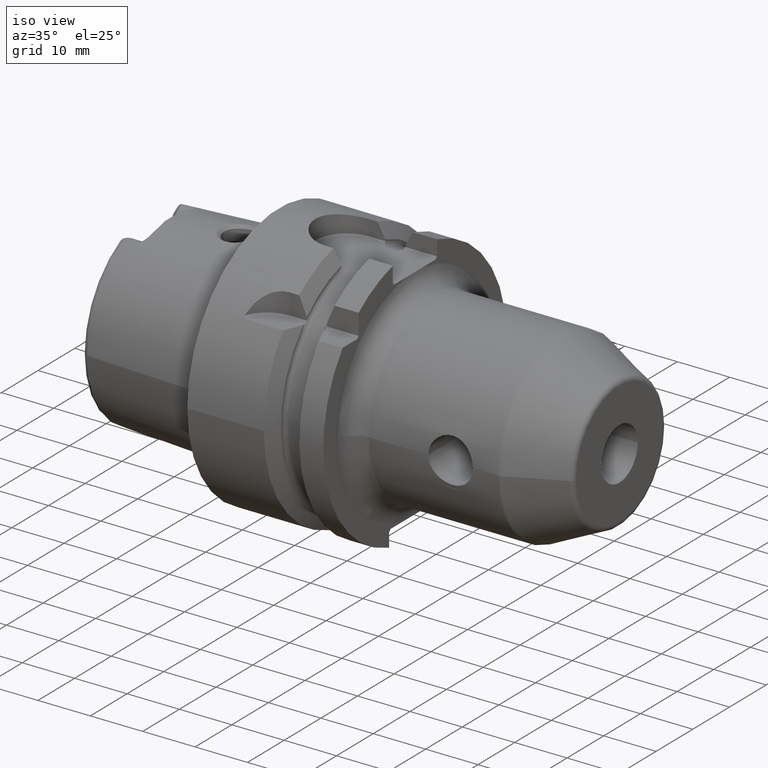
[diagram: clean part render]
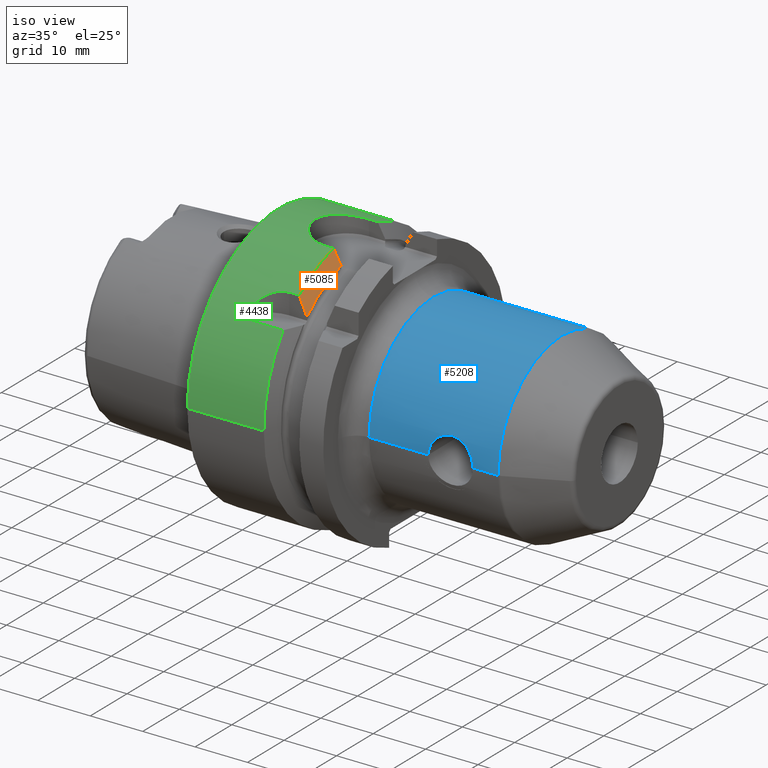
[diagram: same view with three faces highlighted in distinct colors, each labeled with its STEP entity id]
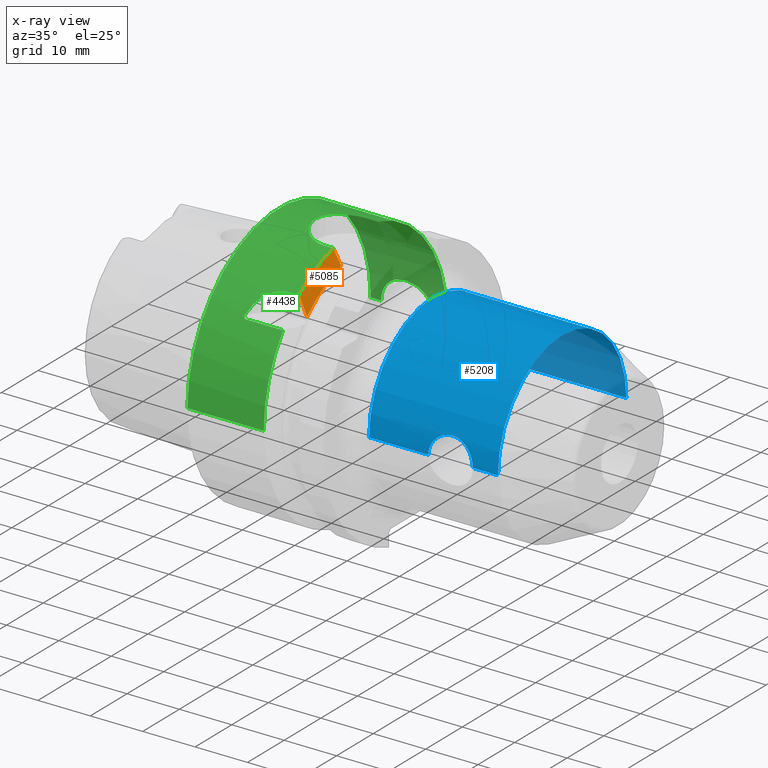
[diagram: x-ray of the same camera — body ghosted, the three highlighted faces saturated]
A machine part, iso view with three faces highlighted in distinct colors.
The next image is the same camera in x-ray (body ghosted, the three faces saturated) — at least one of them is partly hidden behind the body in this view.
Their STEP definitions:

[orange] entity #5085 — the highlighted conical surface has half-angle 60 deg.
#943=CARTESIAN_POINT('',(1.460806716851E1,0.E0,0.E0));
#944=DIRECTION('',(1.E0,0.E0,0.E0));
#945=DIRECTION('',(0.E0,-2.407E-1,9.705995621264E-1));
#946=AXIS2_PLACEMENT_3D('',#943,#944,#945);
#1172=CARTESIAN_POINT('',(1.460806716851E1,-6.0175E0,2.426498905316E1));
#1173=CARTESIAN_POINT('',(1.478033687197E1,-6.0175E0,2.395757094724E1));
#1174=CARTESIAN_POINT('',(1.511962153260E1,-6.0175E0,2.335143473849E1));
#1175=CARTESIAN_POINT('',(1.561259471048E1,-6.0175E0,2.246862618316E1));
#1176=CARTESIAN_POINT('',(1.593093705707E1,-6.0175E0,2.189706496369E1));
#1177=CARTESIAN_POINT('',(1.60875E1,-6.0175E0,2.161557810313E1));
#1214=CARTESIAN_POINT('',(1.60875E1,0.E0,0.E0));
#1215=DIRECTION('',(1.E0,0.E0,0.E0));
#1216=DIRECTION('',(0.E0,-2.681888512389E-1,9.633663581790E-1));
#1217=AXIS2_PLACEMENT_3D('',#1214,#1215,#1216);
#2010=CARTESIAN_POINT('',(1.460806716851E1,-1.535E1,1.973265060756E1));
#2011=CARTESIAN_POINT('',(1.479337707681E1,-1.535E1,1.932600709233E1));
#2012=CARTESIAN_POINT('',(1.514980156060E1,-1.535E1,1.853434646059E1));
#2013=CARTESIAN_POINT('',(1.564015286667E1,-1.535E1,1.741736156854E1));
#2014=CARTESIAN_POINT('',(1.594264224419E1,-1.535E1,1.670923586124E1));
#2015=CARTESIAN_POINT('',(1.60875E1,-1.535E1,1.636523825010E1));
#3109=CARTESIAN_POINT('',(1.60875E1,-6.0175E0,2.161557810313E1));
#3111=VERTEX_POINT('',#3109);
#3118=VERTEX_POINT('',#1172);
#3150=CARTESIAN_POINT('',(1.60875E1,-1.535E1,1.636523825010E1));
#3151=VERTEX_POINT('',#3150);
#3200=VERTEX_POINT('',#2010);
#5073=CARTESIAN_POINT('',(1.534778358426E1,0.E0,0.E0));
#5074=DIRECTION('',(-1.E0,0.E0,0.E0));
#5075=DIRECTION('',(0.E0,1.E0,0.E0));
#5076=AXIS2_PLACEMENT_3D('',#5073,#5074,#5075);
#5077=CONICAL_SURFACE('',#5076,2.371877358474E1,6.E1);
#5078=ORIENTED_EDGE('',*,*,#4648,.T.);
#5079=ORIENTED_EDGE('',*,*,#4687,.T.);
#5081=ORIENTED_EDGE('',*,*,#5080,.F.);
#5082=ORIENTED_EDGE('',*,*,#4417,.F.);
#5083=EDGE_LOOP('',(#5078,#5079,#5081,#5082));
#5084=FACE_OUTER_BOUND('',#5083,.F.);
#5085=ADVANCED_FACE('',(#5084),#5077,.T.);
#947=CIRCLE('',#946,2.5E1);
#1178=B_SPLINE_CURVE_WITH_KNOTS('',3,(#1172,#1173,#1174,#1175,#1176,#1177),
.UNSPECIFIED.,.F.,.F.,(4,1,1,4),(0.E0,3.333333333333E-1,6.666666666667E-1,1.E0),
.UNSPECIFIED.);
#1218=CIRCLE('',#1217,2.243754716948E1);
#2016=B_SPLINE_CURVE_WITH_KNOTS('',3,(#2010,#2011,#2012,#2013,#2014,#2015),
.UNSPECIFIED.,.F.,.F.,(4,1,1,4),(0.E0,3.333333333333E-1,6.666666666667E-1,1.E0),
.UNSPECIFIED.);
#4417=EDGE_CURVE('',#3118,#3200,#947,.T.);
#4648=EDGE_CURVE('',#3118,#3111,#1178,.T.);
#4687=EDGE_CURVE('',#3111,#3151,#1218,.T.);
#5080=EDGE_CURVE('',#3200,#3151,#2016,.T.);

[blue] entity #5208 — the highlighted cylindrical surface (partial cylindrical patch) has radius 17.5 mm, axis along (1, 0, 0).
#1704=CARTESIAN_POINT('',(4.075E1,-1.75E1,0.E0));
#1705=CARTESIAN_POINT('',(4.075E1,-1.75E1,2.130197039147E-1));
#1706=CARTESIAN_POINT('',(4.078161173627E1,-1.749228159655E1,
6.333805716531E-1));
#1707=CARTESIAN_POINT('',(4.092245200535E1,-1.745862258852E1,1.252781552854E0));
#1708=CARTESIAN_POINT('',(4.115179481535E1,-1.740611528043E1,1.840299977817E0));
#1709=CARTESIAN_POINT('',(4.146701037617E1,-1.733867884770E1,2.390358784023E0));
#1710=CARTESIAN_POINT('',(4.185948864356E1,-1.726240189724E1,2.886969726186E0));
#1711=CARTESIAN_POINT('',(4.232692702379E1,-1.718290588471E1,3.324674033533E0));
#1712=CARTESIAN_POINT('',(4.285433638867E1,-1.710816369491E1,3.687396218797E0));
#1713=CARTESIAN_POINT('',(4.343630437365E1,-1.704449781645E1,3.969161713291E0));
#1714=CARTESIAN_POINT('',(4.404328513304E1,-1.699926170109E1,4.157119174542E0));
#1715=CARTESIAN_POINT('',(4.467277888915E1,-1.697533126122E1,4.253056453453E0));
#1716=CARTESIAN_POINT('',(4.530199784139E1,-1.697485548976E1,4.254940041340E0));
#1717=CARTESIAN_POINT('',(4.593246679151E1,-1.699790173968E1,4.162634456686E0));
#1718=CARTESIAN_POINT('',(4.654019657417E1,-1.704235026038E1,3.978294549510E0));
#1719=CARTESIAN_POINT('',(4.712309613911E1,-1.710532842128E1,3.700413011273E0));
#1720=CARTESIAN_POINT('',(4.765357832203E1,-1.717983873078E1,3.340436728067E0));
#1721=CARTESIAN_POINT('',(4.812659820629E1,-1.725982925667E1,2.902390204199E0));
#1722=CARTESIAN_POINT('',(4.852415408302E1,-1.733685100034E1,2.403776234393E0));
#1723=CARTESIAN_POINT('',(4.884336895E1,-1.740503015295E1,1.850840187255E0));
#1724=CARTESIAN_POINT('',(4.907539738069E1,-1.745811341707E1,1.260383892617E0));
#1725=CARTESIAN_POINT('',(4.921798757235E1,-1.749218313134E1,
6.373559774327E-1));
#1726=CARTESIAN_POINT('',(4.925E1,-1.75E1,2.143892721542E-1));
#1727=CARTESIAN_POINT('',(4.925E1,-1.75E1,0.E0));
#1729=CARTESIAN_POINT('',(2.945E1,0.E0,0.E0));
#1730=DIRECTION('',(1.E0,0.E0,0.E0));
#1731=DIRECTION('',(0.E0,-1.024910657754E-5,9.999999999475E-1));
#1732=AXIS2_PLACEMENT_3D('',#1729,#1730,#1731);
#1734=CARTESIAN_POINT('',(2.945E1,0.E0,0.E0));
#1735=DIRECTION('',(1.E0,0.E0,0.E0));
#1736=DIRECTION('',(0.E0,1.E0,0.E0));
#1737=AXIS2_PLACEMENT_3D('',#1734,#1735,#1736);
#1739=CARTESIAN_POINT('',(5.405577073481E1,0.E0,0.E0));
#1740=DIRECTION('',(-1.E0,0.E0,0.E0));
#1741=DIRECTION('',(0.E0,-1.E0,0.E0));
#1742=AXIS2_PLACEMENT_3D('',#1739,#1740,#1741);
#1777=DIRECTION('',(-1.E0,0.E0,-1.017549422103E-13));
#1778=VECTOR('',#1777,4.805770734809E0);
#1779=CARTESIAN_POINT('',(5.405577073481E1,-1.75E1,4.871347205314E-13));
#1780=LINE('',#1779,#1778);
#1786=DIRECTION('',(-1.E0,0.E0,5.329089047643E-14));
#1787=VECTOR('',#1786,2.460577073481E1);
#1788=CARTESIAN_POINT('',(5.405577073481E1,1.75E1,-4.915586762056E-13));
#1789=LINE('',#1788,#1787);
#1790=DIRECTION('',(-1.E0,0.E0,-1.090872037542E-13));
#1791=VECTOR('',#1790,1.13E1);
#1792=CARTESIAN_POINT('',(4.075E1,-1.75E1,0.E0));
#1793=LINE('',#1792,#1791);
#3400=CARTESIAN_POINT('',(2.945E1,-1.793593651069E-4,1.749999999908E1));
#3401=CARTESIAN_POINT('',(2.945E1,-1.75E1,0.E0));
#3402=VERTEX_POINT('',#3400);
#3403=VERTEX_POINT('',#3401);
#3405=CARTESIAN_POINT('',(2.945E1,1.75E1,0.E0));
#3406=VERTEX_POINT('',#3405);
#3409=CARTESIAN_POINT('',(5.405577073481E1,1.75E1,0.E0));
#3410=CARTESIAN_POINT('',(5.405577073481E1,-1.75E1,0.E0));
#3411=VERTEX_POINT('',#3409);
#3412=VERTEX_POINT('',#3410);
#3433=VERTEX_POINT('',#1704);
#3434=VERTEX_POINT('',#1727);
#5189=CARTESIAN_POINT('',(2.39975E1,0.E0,0.E0));
#5190=DIRECTION('',(1.E0,0.E0,0.E0));
#5191=DIRECTION('',(0.E0,-1.E0,0.E0));
#5192=AXIS2_PLACEMENT_3D('',#5189,#5190,#5191);
#5193=CYLINDRICAL_SURFACE('',#5192,1.75E1);
#5195=ORIENTED_EDGE('',*,*,#5194,.F.);
#5197=ORIENTED_EDGE('',*,*,#5196,.T.);
#5198=ORIENTED_EDGE('',*,*,#5183,.F.);
#5199=ORIENTED_EDGE('',*,*,#4854,.F.);
#5201=ORIENTED_EDGE('',*,*,#5200,.F.);
#5203=ORIENTED_EDGE('',*,*,#5202,.F.);
#5205=ORIENTED_EDGE('',*,*,#5204,.T.);
#5206=EDGE_LOOP('',(#5195,#5197,#5198,#5199,#5201,#5203,#5205));
#5207=FACE_OUTER_BOUND('',#5206,.F.);
#5208=ADVANCED_FACE('',(#5207),#5193,.T.);
#1728=B_SPLINE_CURVE_WITH_KNOTS('',3,(#1704,#1705,#1706,#1707,#1708,#1709,#1710,
#1711,#1712,#1713,#1714,#1715,#1716,#1717,#1718,#1719,#1720,#1721,#1722,#1723,
#1724,#1725,#1726,#1727),.UNSPECIFIED.,.F.,.F.,(4,1,1,1,1,1,1,1,1,1,1,1,1,1,1,1,
1,1,1,1,1,4),(0.E0,4.761904761905E-2,9.523809523810E-2,1.428571428571E-1,
1.904761904762E-1,2.380952380952E-1,2.857142857143E-1,3.333333333333E-1,
3.809523809524E-1,4.285714285714E-1,4.761904761905E-1,5.238095238095E-1,
5.714285714286E-1,6.190476190476E-1,6.666666666667E-1,7.142857142857E-1,
7.619047619048E-1,8.095238095238E-1,8.571428571429E-1,9.047619047619E-1,
9.523809523810E-1,1.E0),.UNSPECIFIED.);
#1733=CIRCLE('',#1732,1.75E1);
#1738=CIRCLE('',#1737,1.75E1);
#1743=CIRCLE('',#1742,1.75E1);
#4854=EDGE_CURVE('',#3406,#3402,#1738,.T.);
#5183=EDGE_CURVE('',#3402,#3403,#1733,.T.);
#5194=EDGE_CURVE('',#3433,#3434,#1728,.T.);
#5196=EDGE_CURVE('',#3433,#3403,#1793,.T.);
#5200=EDGE_CURVE('',#3411,#3406,#1789,.T.);
#5202=EDGE_CURVE('',#3412,#3411,#1743,.T.);
#5204=EDGE_CURVE('',#3412,#3434,#1780,.T.);

[green] entity #4438 — the highlighted cylindrical surface (partial cylindrical patch) has radius 25 mm, axis along (1, 0, 0).
#867=CARTESIAN_POINT('',(0.E0,0.E0,0.E0));
#868=DIRECTION('',(1.E0,0.E0,0.E0));
#869=DIRECTION('',(0.E0,1.E0,0.E0));
#870=AXIS2_PLACEMENT_3D('',#867,#868,#869);
#887=CARTESIAN_POINT('',(1.2E1,2.5E1,1.526170039412E-14));
#888=CARTESIAN_POINT('',(1.2E1,2.5E1,1.396361669566E-1));
#889=CARTESIAN_POINT('',(1.198839559876E1,2.499767503671E1,4.188551199645E-1));
#890=CARTESIAN_POINT('',(1.193487591412E1,2.498702525719E1,8.411355470880E-1));
#891=CARTESIAN_POINT('',(1.184588884629E1,2.496956318530E1,1.255556682962E0));
#892=CARTESIAN_POINT('',(1.172437073918E1,2.494621805665E1,1.654326844388E0));
#893=CARTESIAN_POINT('',(1.157233803758E1,2.491780457859E1,2.037765396024E0));
#894=CARTESIAN_POINT('',(1.137826090774E1,2.488280033899E1,2.428957637124E0));
#895=CARTESIAN_POINT('',(1.112593169286E1,2.483941608179E1,2.839794746863E0));
#896=CARTESIAN_POINT('',(1.078966073596E1,2.478533925893E1,3.279662427458E0));
#897=CARTESIAN_POINT('',(1.034920049245E1,2.472123687765E1,3.731964970310E0));
#898=CARTESIAN_POINT('',(9.810568187861E0,2.465328264736E1,4.155812761009E0));
#899=CARTESIAN_POINT('',(9.171139758796E0,2.458785937757E1,4.524792131194E0));
#900=CARTESIAN_POINT('',(8.466271578711E0,2.453509771841E1,4.800556799822E0));
#901=CARTESIAN_POINT('',(7.720798631611E0,2.450179247679E1,4.966438431029E0));
#902=CARTESIAN_POINT('',(7.239977653175E0,2.449489742783E1,5.E0));
#903=CARTESIAN_POINT('',(7.E0,2.449489742783E1,5.E0));
#905=CARTESIAN_POINT('',(1.460806716851E1,0.E0,0.E0));
#906=DIRECTION('',(1.E0,0.E0,0.E0));
#907=DIRECTION('',(0.E0,1.E0,0.E0));
#908=AXIS2_PLACEMENT_3D('',#905,#906,#907);
#910=DIRECTION('',(1.E0,0.E0,0.E0));
#911=VECTOR('',#910,1.640567168511E0);
#912=CARTESIAN_POINT('',(1.29675E1,6.0175E0,2.426498905316E1));
#913=LINE('',#912,#911);
#914=CARTESIAN_POINT('',(1.29675E1,-6.0175E0,2.426498905316E1));
#915=CARTESIAN_POINT('',(1.267001977106E1,-6.0175E0,2.426498905316E1));
#916=CARTESIAN_POINT('',(1.208014574037E1,-5.974264320289E0,2.427577944586E1));
#917=CARTESIAN_POINT('',(1.119398879761E1,-5.773912792451E0,2.432458918315E1));
#918=CARTESIAN_POINT('',(1.035629865204E1,-5.446281307968E0,2.440062930721E1));
#919=CARTESIAN_POINT('',(9.570549924165E0,-4.994525095911E0,2.449784203663E1));
#920=CARTESIAN_POINT('',(8.859335655751E0,-4.428424444987E0,2.460735616990E1));
#921=CARTESIAN_POINT('',(8.237705259596E0,-3.756976706063E0,2.471958631858E1));
#922=CARTESIAN_POINT('',(7.729434557517E0,-3.007811120107E0,2.482263381281E1));
#923=CARTESIAN_POINT('',(7.337924838101E0,-2.188228602670E0,2.490880688784E1));
#924=CARTESIAN_POINT('',(7.076723724624E0,-1.332816222257E0,2.496957642541E1));
#925=CARTESIAN_POINT('',(6.944313494671E0,-4.437817595373E-1,2.500135908732E1));
#926=CARTESIAN_POINT('',(6.944380657024E0,4.447153631879E-1,2.500134275233E1));
#927=CARTESIAN_POINT('',(7.076937145034E0,1.333751794457E0,2.496952581905E1));
#928=CARTESIAN_POINT('',(7.338254277846E0,2.189079804056E0,2.490873170650E1));
#929=CARTESIAN_POINT('',(7.729918562096E0,3.008648084777E0,2.482253139083E1));
#930=CARTESIAN_POINT('',(8.238250048826E0,3.757671688176E0,2.471948033175E1));
#931=CARTESIAN_POINT('',(8.860113884246E0,4.429136984953E0,2.460722669885E1));
#932=CARTESIAN_POINT('',(9.571194326808E0,4.994971608218E0,2.449775036144E1));
#933=CARTESIAN_POINT('',(1.035742514871E1,5.446831304653E0,2.440050633562E1));
#934=CARTESIAN_POINT('',(1.119482197413E1,5.774135809015E0,2.432453475726E1));
#935=CARTESIAN_POINT('',(1.208047877402E1,5.974292572348E0,2.427577245256E1));
#936=CARTESIAN_POINT('',(1.267012654017E1,6.0175E0,2.426498905316E1));
#937=CARTESIAN_POINT('',(1.29675E1,6.0175E0,2.426498905316E1));
#939=DIRECTION('',(1.E0,0.E0,0.E0));
#940=VECTOR('',#939,1.640567168511E0);
#941=CARTESIAN_POINT('',(1.29675E1,-6.0175E0,2.426498905316E1));
#942=LINE('',#941,#940);
#943=CARTESIAN_POINT('',(1.460806716851E1,0.E0,0.E0));
#944=DIRECTION('',(1.E0,0.E0,0.E0));
#945=DIRECTION('',(0.E0,-2.407E-1,9.705995621264E-1));
#946=AXIS2_PLACEMENT_3D('',#943,#944,#945);
#948=DIRECTION('',(1.E0,0.E0,0.E0));
#949=VECTOR('',#948,1.914380895625E0);
#950=CARTESIAN_POINT('',(1.269368627289E1,-1.535E1,1.973265060756E1));
#951=LINE('',#950,#949);
#952=CARTESIAN_POINT('',(7.014312287542E0,-1.941487888938E1,1.575000188791E1));
#953=CARTESIAN_POINT('',(7.105107318717E0,-1.914840507931E1,1.607848164927E1));
#954=CARTESIAN_POINT('',(7.322191474670E0,-1.863555411155E1,1.667660984110E1));
#955=CARTESIAN_POINT('',(7.728432422807E0,-1.795161569204E1,1.740753268153E1));
#956=CARTESIAN_POINT('',(8.205411309503E0,-1.734358110205E1,1.801135406510E1));
#957=CARTESIAN_POINT('',(8.746642197198E0,-1.681053757601E1,1.850812745683E1));
#958=CARTESIAN_POINT('',(9.330788720679E0,-1.636318781531E1,1.890349167782E1));
#959=CARTESIAN_POINT('',(9.958756853740E0,-1.599312537632E1,1.921667707056E1));
#960=CARTESIAN_POINT('',(1.061916482915E1,-1.570515606782E1,1.945200283558E1));
#961=CARTESIAN_POINT('',(1.129301090073E1,-1.550158905615E1,1.961414253632E1));
#962=CARTESIAN_POINT('',(1.199118851982E1,-1.537734260728E1,1.971142996702E1));
#963=CARTESIAN_POINT('',(1.245842128019E1,-1.535E1,1.973265060756E1));
#964=CARTESIAN_POINT('',(1.269368627289E1,-1.535E1,1.973265060756E1));
#966=DIRECTION('',(1.E0,6.189435976035E-8,-2.143060964371E-7));
#967=VECTOR('',#966,7.275739392870E0);
#968=CARTESIAN_POINT('',(7.332327775641E0,-1.973265105789E1,1.535000155924E1));
#969=LINE('',#968,#967);
#970=CARTESIAN_POINT('',(1.460806716851E1,0.E0,0.E0));
#971=DIRECTION('',(1.E0,0.E0,0.E0));
#972=DIRECTION('',(0.E0,-7.893060243024E-1,6.14E-1));
#973=AXIS2_PLACEMENT_3D('',#970,#971,#972);
#975=CARTESIAN_POINT('',(7.E0,2.449489742783E1,5.E0));
#976=CARTESIAN_POINT('',(6.761456629891E0,2.449489742783E1,5.E0));
#977=CARTESIAN_POINT('',(6.284099558964E0,2.450171778544E1,4.966797325618E0));
#978=CARTESIAN_POINT('',(5.546742600617E0,2.453440702590E1,4.804016519566E0));
#979=CARTESIAN_POINT('',(4.849527951524E0,2.458610035104E1,4.534169510600E0));
#980=CARTESIAN_POINT('',(4.214625421388E0,2.465043937623E1,4.172421115045E0));
#981=CARTESIAN_POINT('',(3.675906642440E0,2.471783362875E1,3.754264982352E0));
#982=CARTESIAN_POINT('',(3.232294856577E0,2.478197114054E1,3.304945144176E0));
#983=CARTESIAN_POINT('',(2.891885681669E0,2.483644711618E1,2.865655033406E0));
#984=CARTESIAN_POINT('',(2.635677379664E0,2.488034059450E1,2.454109288364E0));
#985=CARTESIAN_POINT('',(2.437783056705E0,2.491594110500E1,2.060613876008E0));
#986=CARTESIAN_POINT('',(2.282268438507E0,2.494495577226E1,1.673589009772E0));
#987=CARTESIAN_POINT('',(2.157746089973E0,2.496885447423E1,1.270094617234E0));
#988=CARTESIAN_POINT('',(2.066662314600E0,2.498672004420E1,8.509436418297E-1));
#989=CARTESIAN_POINT('',(2.011881569252E0,2.499761939888E1,4.238045504715E-1));
#990=CARTESIAN_POINT('',(2.E0,2.5E1,1.412957668624E-1));
#991=CARTESIAN_POINT('',(2.E0,2.5E1,2.455170019084E-14));
#1083=DIRECTION('',(-1.E0,0.E0,-1.125531109613E-14));
#1084=VECTOR('',#1083,2.E0);
#1085=CARTESIAN_POINT('',(2.E0,2.5E1,2.455170019084E-14));
#1086=LINE('',#1085,#1084);
#1087=DIRECTION('',(-1.E0,0.E0,0.E0));
#1088=VECTOR('',#1087,1.460806716851E1);
#1089=CARTESIAN_POINT('',(1.460806716851E1,-2.5E1,0.E0));
#1090=LINE('',#1089,#1088);
#1144=DIRECTION('',(-1.E0,0.E0,0.E0));
#1145=VECTOR('',#1144,2.608067168511E0);
#1146=CARTESIAN_POINT('',(1.460806716851E1,2.5E1,0.E0));
#1147=LINE('',#1146,#1145);
#1172=CARTESIAN_POINT('',(1.460806716851E1,-6.0175E0,2.426498905316E1));
#1564=CARTESIAN_POINT('',(1.460806716851E1,6.0175E0,2.426498905316E1));
#2010=CARTESIAN_POINT('',(1.460806716851E1,-1.535E1,1.973265060756E1));
#2069=CARTESIAN_POINT('',(1.460806716851E1,-1.973265060756E1,1.535E1));
#2107=CARTESIAN_POINT('',(7.332327775641E0,-1.973265105789E1,1.535000155924E1));
#2108=CARTESIAN_POINT('',(7.295780106495E0,-1.969754499718E1,1.539513091624E1));
#2109=CARTESIAN_POINT('',(7.223506935393E0,-1.962718499079E1,1.548493811909E1));
#2110=CARTESIAN_POINT('',(7.117483182884E0,-1.952121773706E1,1.561831135207E1));
#2111=CARTESIAN_POINT('',(7.048432084530E0,-1.945036301196E1,1.570626094349E1));
#2112=CARTESIAN_POINT('',(7.014312287542E0,-1.941487888938E1,1.575000188791E1));
#3118=VERTEX_POINT('',#1172);
#3129=VERTEX_POINT('',#1564);
#3196=VERTEX_POINT('',#2069);
#3200=VERTEX_POINT('',#2010);
#3213=CARTESIAN_POINT('',(1.29675E1,6.0175E0,2.426498905316E1));
#3214=VERTEX_POINT('',#3213);
#3215=CARTESIAN_POINT('',(1.29675E1,-6.0175E0,2.426498905316E1));
#3216=VERTEX_POINT('',#3215);
#3257=CARTESIAN_POINT('',(7.014310733153E0,-1.941487894986E1,1.575001002367E1));
#3259=VERTEX_POINT('',#3257);
#3261=CARTESIAN_POINT('',(7.332335239587E0,-1.973265330952E1,1.535E1));
#3263=VERTEX_POINT('',#3261);
#3265=CARTESIAN_POINT('',(1.269368627289E1,-1.535E1,1.973265060756E1));
#3266=VERTEX_POINT('',#3265);
#3287=CARTESIAN_POINT('',(0.E0,2.5E1,0.E0));
#3288=CARTESIAN_POINT('',(0.E0,-2.5E1,0.E0));
#3289=VERTEX_POINT('',#3287);
#3290=VERTEX_POINT('',#3288);
#3291=CARTESIAN_POINT('',(1.460806716851E1,2.5E1,0.E0));
#3292=VERTEX_POINT('',#3291);
#3293=CARTESIAN_POINT('',(1.460806716851E1,-2.5E1,0.E0));
#3294=VERTEX_POINT('',#3293);
#3363=CARTESIAN_POINT('',(7.E0,2.449489742783E1,5.E0));
#3364=VERTEX_POINT('',#3363);
#3391=VERTEX_POINT('',#887);
#3392=VERTEX_POINT('',#991);
#4400=CARTESIAN_POINT('',(-2.74425E1,0.E0,0.E0));
#4401=DIRECTION('',(1.E0,0.E0,0.E0));
#4402=DIRECTION('',(0.E0,-1.E0,0.E0));
#4403=AXIS2_PLACEMENT_3D('',#4400,#4401,#4402);
#4404=CYLINDRICAL_SURFACE('',#4403,2.5E1);
#4406=ORIENTED_EDGE('',*,*,#4405,.F.);
#4408=ORIENTED_EDGE('',*,*,#4407,.F.);
#4410=ORIENTED_EDGE('',*,*,#4409,.T.);
#4412=ORIENTED_EDGE('',*,*,#4411,.F.);
#4414=ORIENTED_EDGE('',*,*,#4413,.F.);
#4416=ORIENTED_EDGE('',*,*,#4415,.T.);
#4418=ORIENTED_EDGE('',*,*,#4417,.T.);
#4420=ORIENTED_EDGE('',*,*,#4419,.F.);
#4422=ORIENTED_EDGE('',*,*,#4421,.F.);
#4424=ORIENTED_EDGE('',*,*,#4423,.F.);
#4426=ORIENTED_EDGE('',*,*,#4425,.T.);
#4428=ORIENTED_EDGE('',*,*,#4427,.T.);
#4430=ORIENTED_EDGE('',*,*,#4429,.T.);
#4431=ORIENTED_EDGE('',*,*,#4389,.F.);
#4433=ORIENTED_EDGE('',*,*,#4432,.F.);
#4435=ORIENTED_EDGE('',*,*,#4434,.F.);
#4436=EDGE_LOOP('',(#4406,#4408,#4410,#4412,#4414,#4416,#4418,#4420,#4422,#4424,
#4426,#4428,#4430,#4431,#4433,#4435));
#4437=FACE_OUTER_BOUND('',#4436,.F.);
#4438=ADVANCED_FACE('',(#4437),#4404,.T.);
#871=CIRCLE('',#870,2.5E1);
#904=B_SPLINE_CURVE_WITH_KNOTS('',3,(#887,#888,#889,#890,#891,#892,#893,#894,
#895,#896,#897,#898,#899,#900,#901,#902,#903),.UNSPECIFIED.,.F.,.F.,(4,1,1,1,1,
1,1,1,1,1,1,1,1,1,4),(0.E0,7.142857142857E-2,1.428571428571E-1,
2.142857142857E-1,2.857142857143E-1,3.571428571429E-1,4.285714285714E-1,5.E-1,
5.714285714286E-1,6.428571428571E-1,7.142857142857E-1,7.857142857143E-1,
8.571428571429E-1,9.285714285714E-1,1.E0),.UNSPECIFIED.);
#909=CIRCLE('',#908,2.5E1);
#938=B_SPLINE_CURVE_WITH_KNOTS('',3,(#914,#915,#916,#917,#918,#919,#920,#921,
#922,#923,#924,#925,#926,#927,#928,#929,#930,#931,#932,#933,#934,#935,#936,
#937),.UNSPECIFIED.,.F.,.F.,(4,1,1,1,1,1,1,1,1,1,1,1,1,1,1,1,1,1,1,1,1,4),(0.E0,
4.761904761905E-2,9.523809523810E-2,1.428571428571E-1,1.904761904762E-1,
2.380952380952E-1,2.857142857143E-1,3.333333333333E-1,3.809523809524E-1,
4.285714285714E-1,4.761904761905E-1,5.238095238095E-1,5.714285714286E-1,
6.190476190476E-1,6.666666666667E-1,7.142857142857E-1,7.619047619048E-1,
8.095238095238E-1,8.571428571429E-1,9.047619047619E-1,9.523809523810E-1,1.E0),
.UNSPECIFIED.);
#947=CIRCLE('',#946,2.5E1);
#965=B_SPLINE_CURVE_WITH_KNOTS('',3,(#952,#953,#954,#955,#956,#957,#958,#959,
#960,#961,#962,#963,#964),.UNSPECIFIED.,.F.,.F.,(4,1,1,1,1,1,1,1,1,1,4),(0.E0,
1.E-1,2.E-1,3.E-1,4.E-1,5.E-1,6.E-1,7.E-1,8.E-1,9.E-1,1.E0),.UNSPECIFIED.);
#974=CIRCLE('',#973,2.5E1);
#992=B_SPLINE_CURVE_WITH_KNOTS('',3,(#975,#976,#977,#978,#979,#980,#981,#982,
#983,#984,#985,#986,#987,#988,#989,#990,#991),.UNSPECIFIED.,.F.,.F.,(4,1,1,1,1,
1,1,1,1,1,1,1,1,1,4),(0.E0,7.142857142857E-2,1.428571428571E-1,
2.142857142857E-1,2.857142857143E-1,3.571428571429E-1,4.285714285714E-1,5.E-1,
5.714285714286E-1,6.428571428571E-1,7.142857142857E-1,7.857142857143E-1,
8.571428571429E-1,9.285714285714E-1,1.E0),.UNSPECIFIED.);
#2113=B_SPLINE_CURVE_WITH_KNOTS('',3,(#2107,#2108,#2109,#2110,#2111,#2112),
.UNSPECIFIED.,.F.,.F.,(4,1,1,4),(0.E0,3.333333333333E-1,6.666666666667E-1,1.E0),
.UNSPECIFIED.);
#4389=EDGE_CURVE('',#3289,#3290,#871,.T.);
#4405=EDGE_CURVE('',#3391,#3364,#904,.T.);
#4407=EDGE_CURVE('',#3292,#3391,#1147,.T.);
#4409=EDGE_CURVE('',#3292,#3129,#909,.T.);
#4411=EDGE_CURVE('',#3214,#3129,#913,.T.);
#4413=EDGE_CURVE('',#3216,#3214,#938,.T.);
#4415=EDGE_CURVE('',#3216,#3118,#942,.T.);
#4417=EDGE_CURVE('',#3118,#3200,#947,.T.);
#4419=EDGE_CURVE('',#3266,#3200,#951,.T.);
#4421=EDGE_CURVE('',#3259,#3266,#965,.T.);
#4423=EDGE_CURVE('',#3263,#3259,#2113,.T.);
#4425=EDGE_CURVE('',#3263,#3196,#969,.T.);
#4427=EDGE_CURVE('',#3196,#3294,#974,.T.);
#4429=EDGE_CURVE('',#3294,#3290,#1090,.T.);
#4432=EDGE_CURVE('',#3392,#3289,#1086,.T.);
#4434=EDGE_CURVE('',#3364,#3392,#992,.T.);